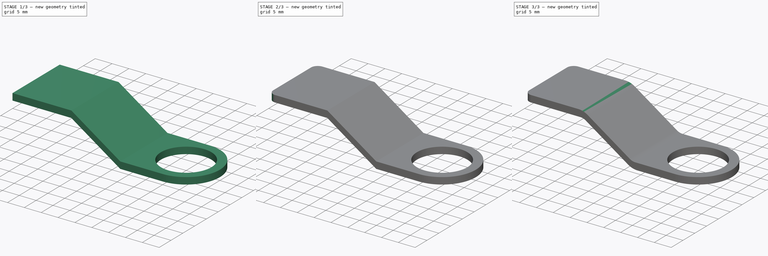
[diagram: build sequence overview — one tinted view per stage of 3, left to right]
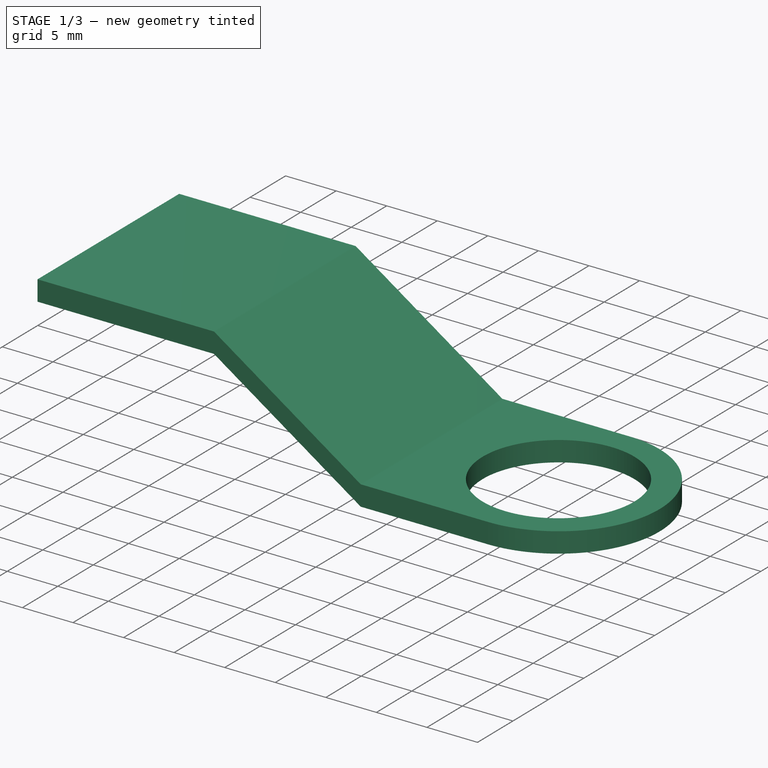
[diagram: stage 1 of 3 — iso view after this stage's code; geometry added in this stage tinted green]
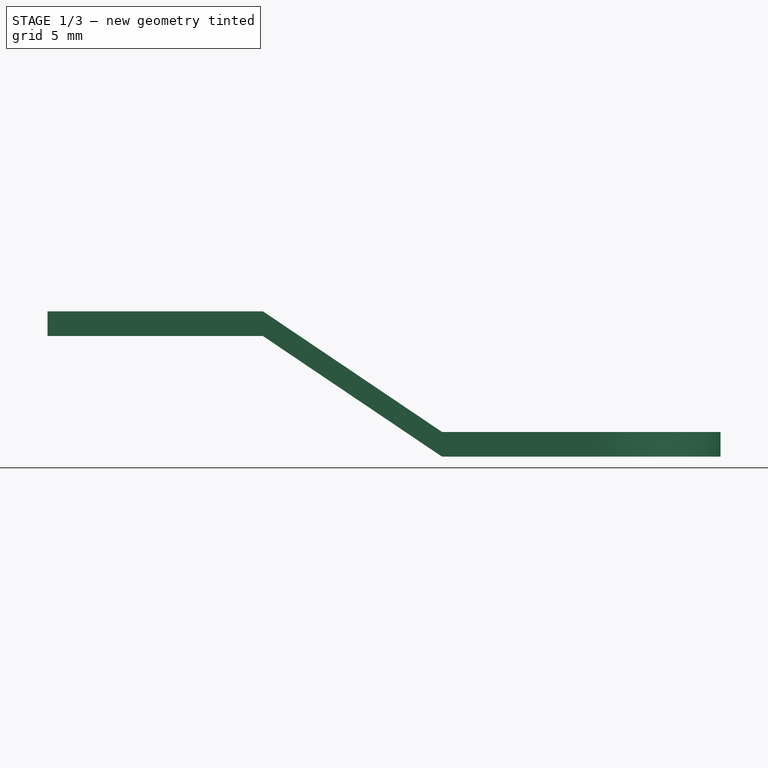
[diagram: stage 1 of 3 — front view after this stage's code; geometry added in this stage tinted green]
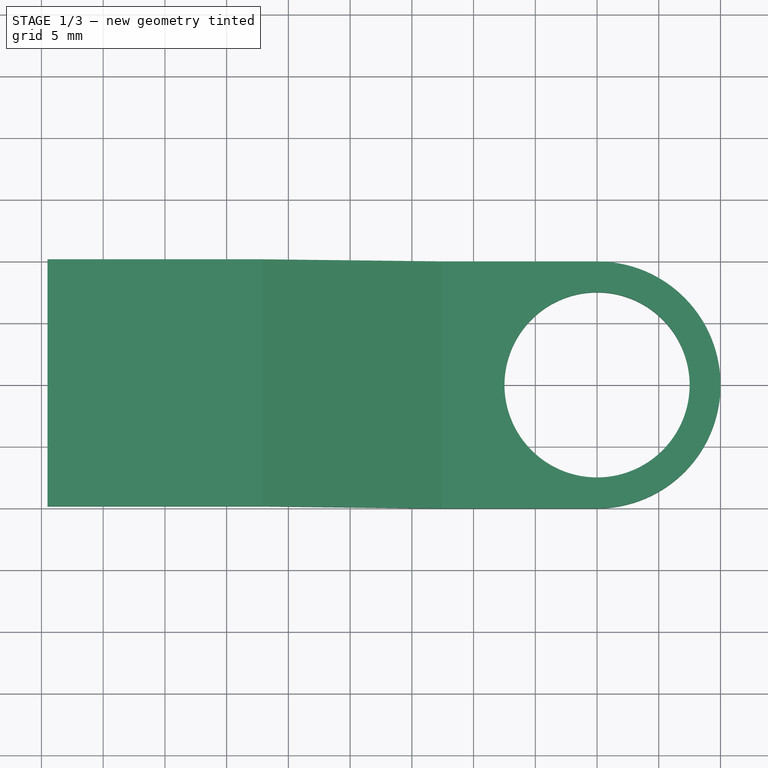
[diagram: stage 1 of 3 — top view after this stage's code; geometry added in this stage tinted green]
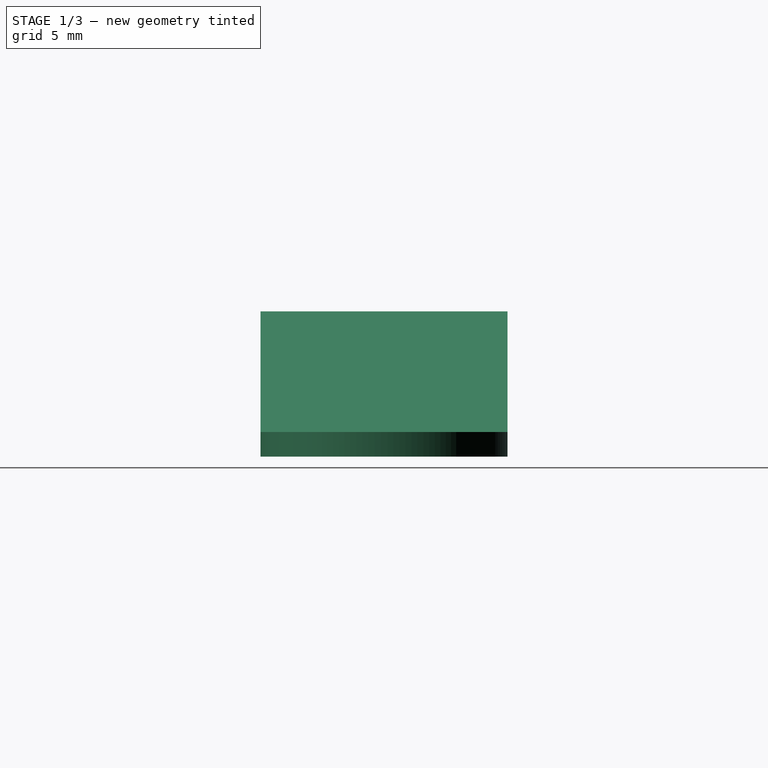
[diagram: stage 1 of 3 — right view after this stage's code; geometry added in this stage tinted green]
FCSTD DOCUMENT  (FreeCAD 0.14R3310 (Git))
Label: 34. PESTILLO CERRADURA
License: CC-BY 3.0
LicenseURL: http://creativecommons.org/licenses/by/3.0/
objects: PartDesign::Fillet×3, Sketcher::SketchObject×2, PartDesign::Pad×2
note: 9 computed .brp shape members not serialized (recipe doc carries the construction recipe); baked Part::Feature solids carry a one-line shape summary decoded from their .brp

FEATURE [Sketcher::SketchObject] Sketch
  sketch-geometry (5):
    g0: Circle CenterX=0 CenterY=0 CenterZ=0 NormalX=0 NormalY=0 NormalZ=1 Radius=7.5
    g1: ArcOfCircle CenterX=0 CenterY=0 CenterZ=0 NormalX=0 NormalY=0 NormalZ=1 Radius=10 StartAngle=4.71239 EndAngle=7.85398
    g2: LineSegment StartX=0 StartY=-10 StartZ=0 EndX=-12.554 EndY=-10 EndZ=0
    g3: LineSegment StartX=0 StartY=10 StartZ=0 EndX=-12.554 EndY=10 EndZ=0
    g4: LineSegment StartX=-12.554 StartY=-10 StartZ=0 EndX=-12.554 EndY=10 EndZ=0
  constraints (14):
    c: Coincident(g0,g-1)
    c: Radius(g0) = 7.5
    c: Coincident(g1,g-1)
    c: PointOnObject(g1,g-2)
    c: PointOnObject(g1,g-2)
    c: Radius(g1) = 10
    c: Coincident(g2,g1)
    c: Horizontal(g2)
    c: Coincident(g3,g1)
    c: Horizontal(g3)
    c: Coincident(g4,g2)
    c: Coincident(g4,g3)
    c: Vertical(g4)
    c: Distance(g2) = 12.554
FEATURE [PartDesign::Pad] Pad
  Length = 2
  Length2 = 100
  Sketch = -> Sketch
  Type = 0
FEATURE [Sketcher::SketchObject] Sketch001
  ExternalGeometry = -> [Pad]
  Placement = pos=(0,-10,0) rot=(1,0,0;1.5708rad)
  Support = -> Pad [Face4]
  sketch-geometry (6):
    g0: LineSegment StartX=-12.554 StartY=0 StartZ=0 EndX=-27.0625 EndY=9.77285 EndZ=0
    g1: LineSegment StartX=-12.554 StartY=2 StartZ=0 EndX=-27.0625 EndY=11.7728 EndZ=0
    g2: LineSegment StartX=-27.0625 StartY=9.77285 StartZ=0 EndX=-44.5085 EndY=9.77285 EndZ=0
    g3: LineSegment StartX=-44.5085 StartY=9.77285 StartZ=0 EndX=-44.5085 EndY=11.7728 EndZ=0
    g4: LineSegment StartX=-44.5085 StartY=11.7728 StartZ=0 EndX=-27.0625 EndY=11.7728 EndZ=0
    g5: LineSegment StartX=-12.554 StartY=0 StartZ=0 EndX=-12.554 EndY=2 EndZ=0
  constraints (16):
    c: Coincident(g0,g-3)
    c: Coincident(g1,g-3)
    c: Parallel(g1,g0)
    c: Distance(g0) = 17.493
    c: Coincident(g2,g0)
    c: Horizontal(g2)
    c: Distance(g2) = 17.446
    c: Angle(g-1,g0) = 2.54881
    c: Coincident(g3,g2)
    c: Vertical(g3)
    c: Distance(g3) = 2
    c: Coincident(g4,g3)
    c: Horizontal(g4)
    c: Coincident(g4,g1)
    c: Coincident(g5,g0)
    c: Coincident(g5,g1)
FEATURE [PartDesign::Pad] Pad001
  Length = 20
  Length2 = 100
  Reversed = true
  Sketch = -> Sketch001
  Type = 0
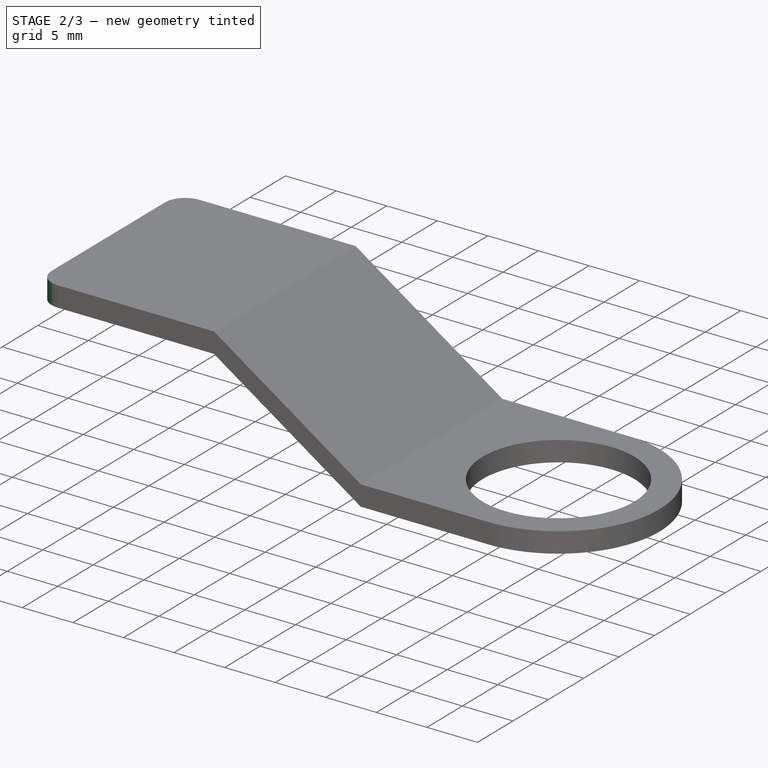
[diagram: stage 2 of 3 — iso view after this stage's code; geometry added in this stage tinted green]
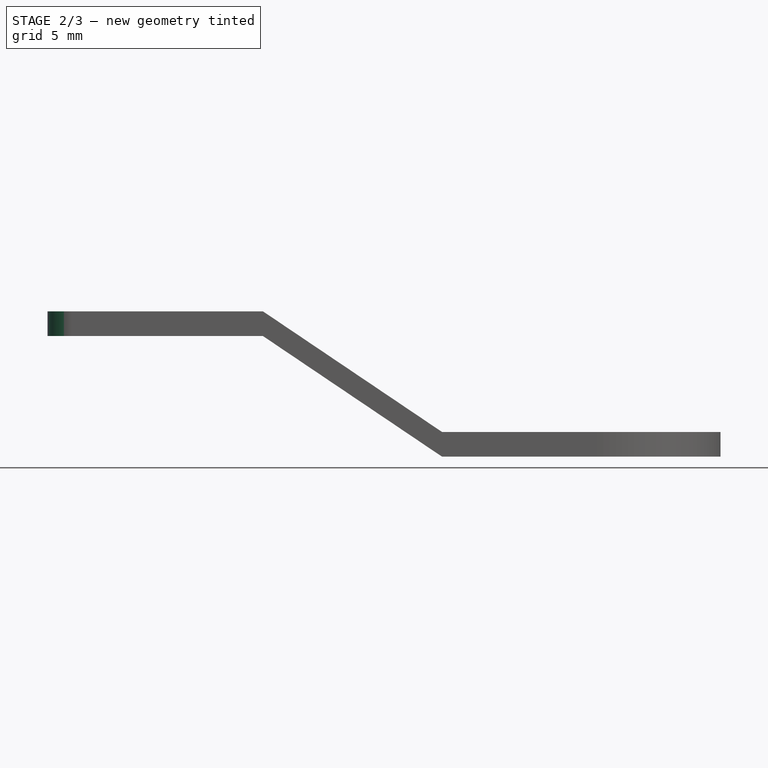
[diagram: stage 2 of 3 — front view after this stage's code; geometry added in this stage tinted green]
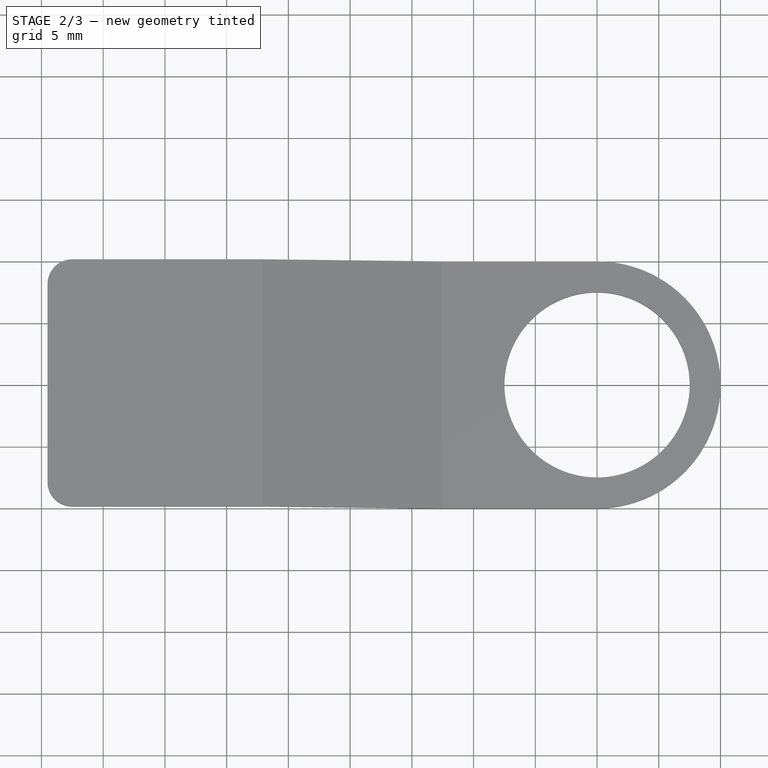
[diagram: stage 2 of 3 — top view after this stage's code; geometry added in this stage tinted green]
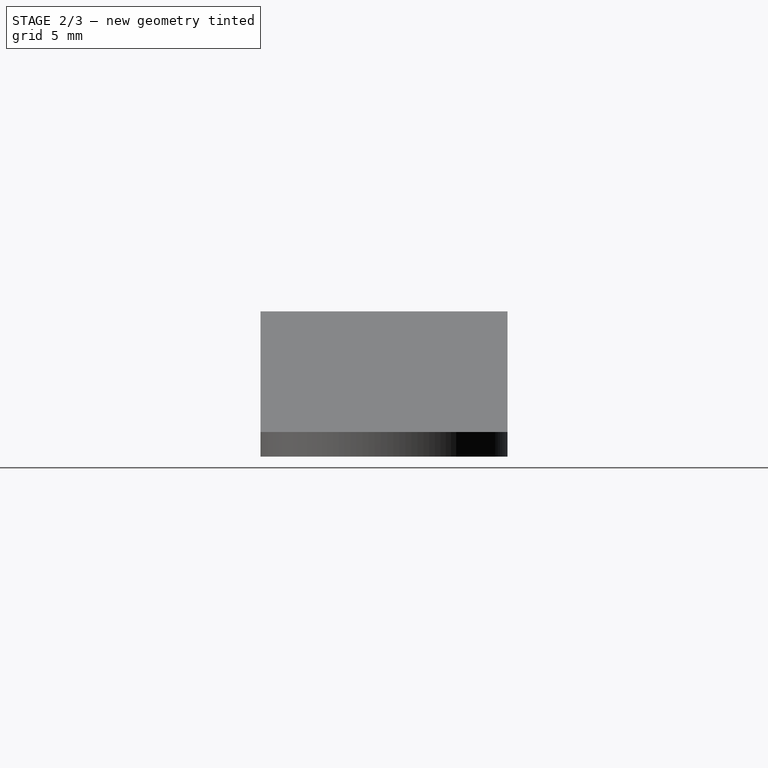
[diagram: stage 2 of 3 — right view after this stage's code; geometry added in this stage tinted green]
FEATURE [PartDesign::Fillet] Fillet
  Base = -> Pad001 [Edge24,Edge25]
  Radius = 2
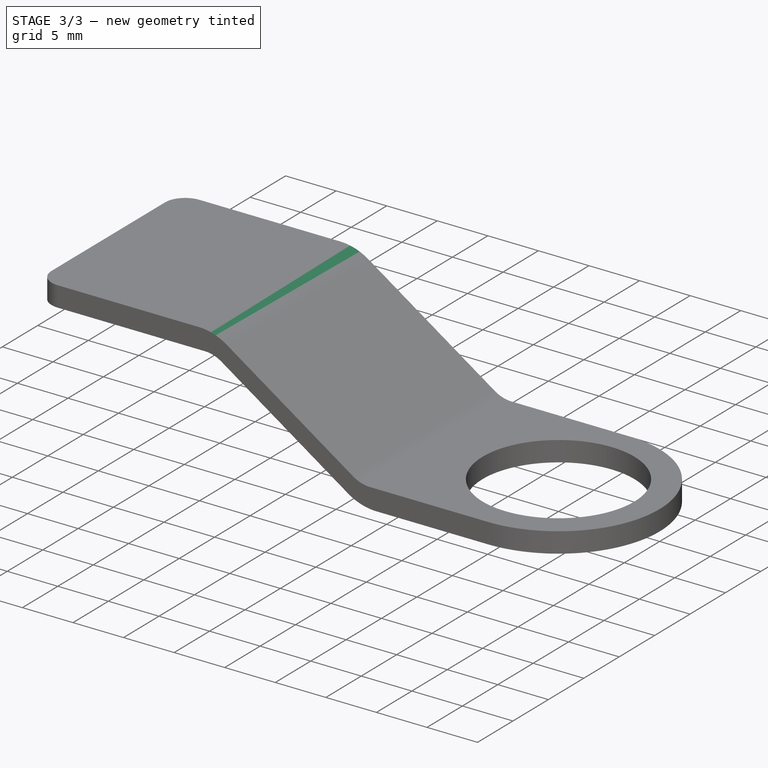
[diagram: stage 3 of 3 — iso view after this stage's code; geometry added in this stage tinted green]
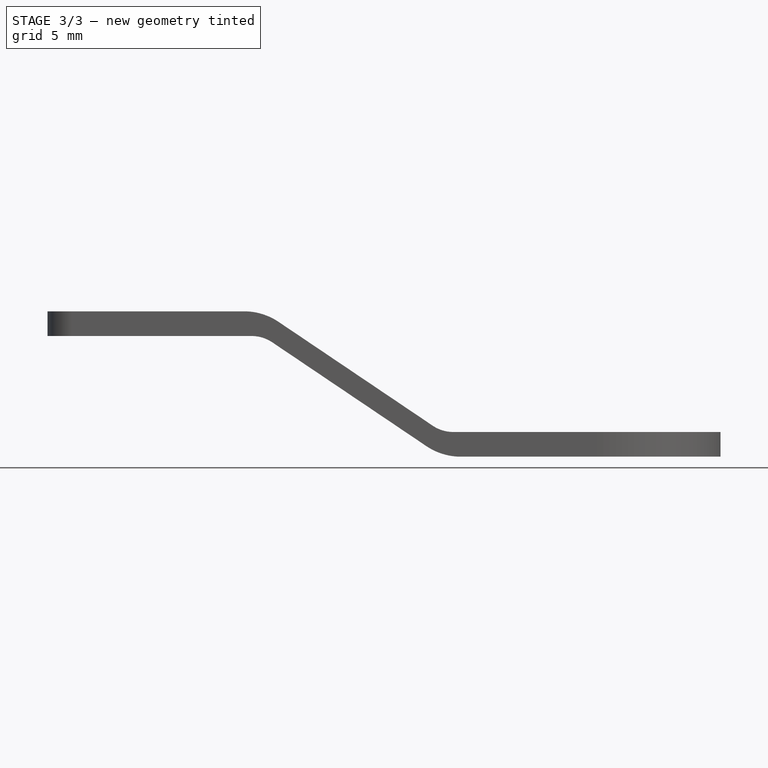
[diagram: stage 3 of 3 — front view after this stage's code; geometry added in this stage tinted green]
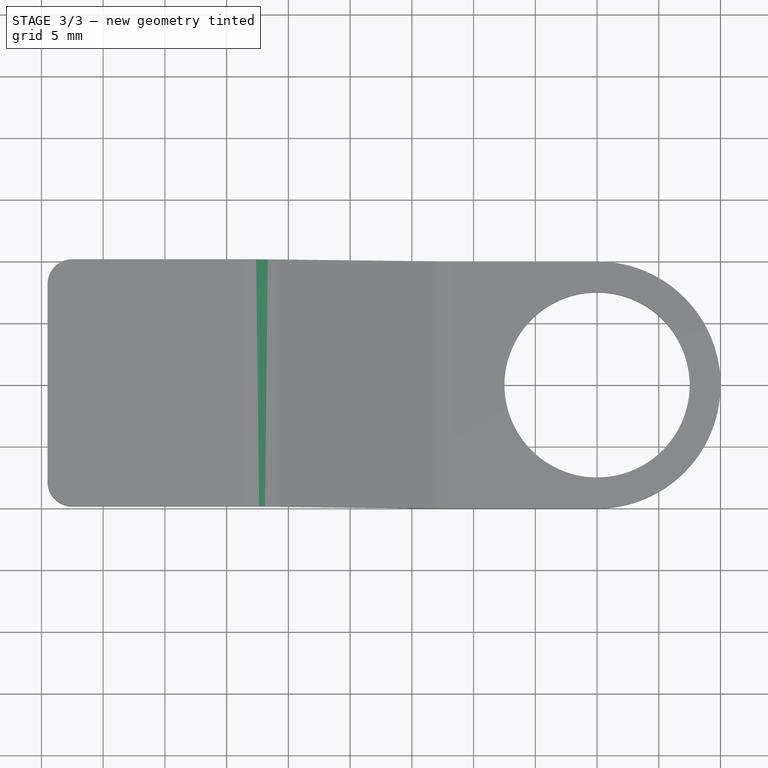
[diagram: stage 3 of 3 — top view after this stage's code; geometry added in this stage tinted green]
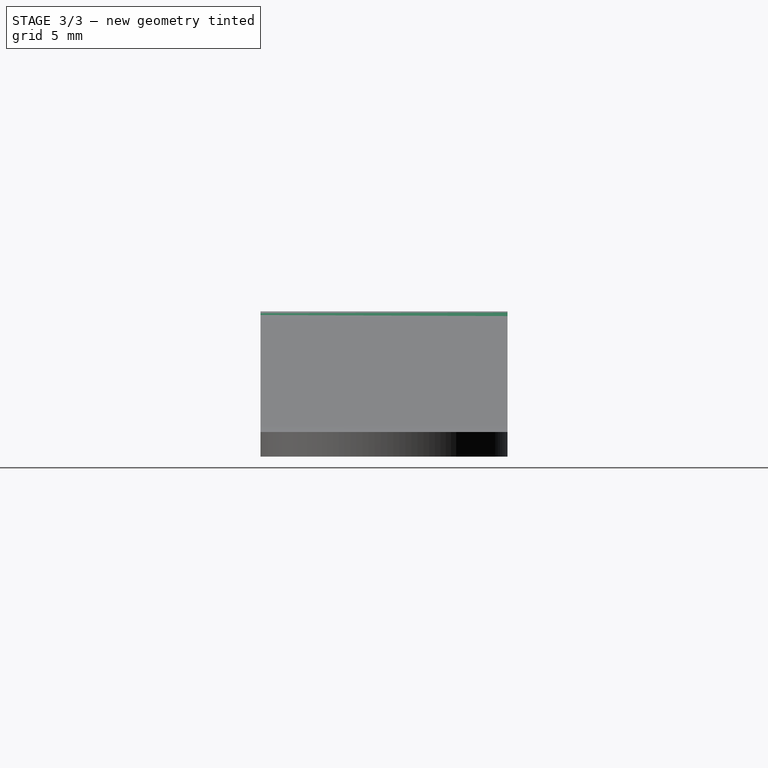
[diagram: stage 3 of 3 — right view after this stage's code; geometry added in this stage tinted green]
FEATURE [PartDesign::Fillet] Fillet001
  Base = -> Fillet [Edge27,Edge26]
  Radius = 5
FEATURE [PartDesign::Fillet] Fillet002
  Base = -> Fillet001 [Edge25,Edge20]
  Radius = 3
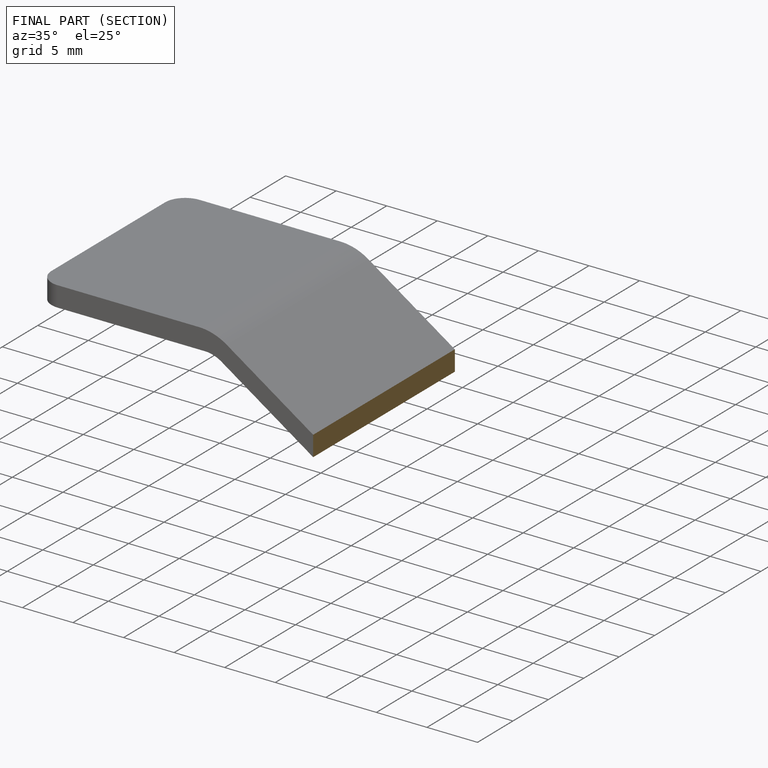
[diagram: finished part — half-section view (interior)]
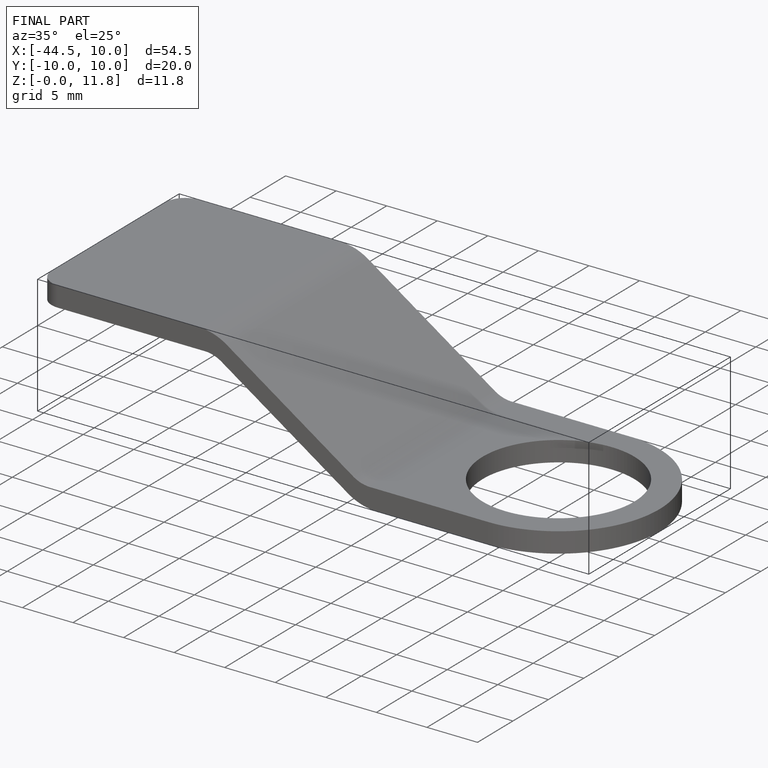
[diagram: finished part — iso view with bounding-box wireframe]
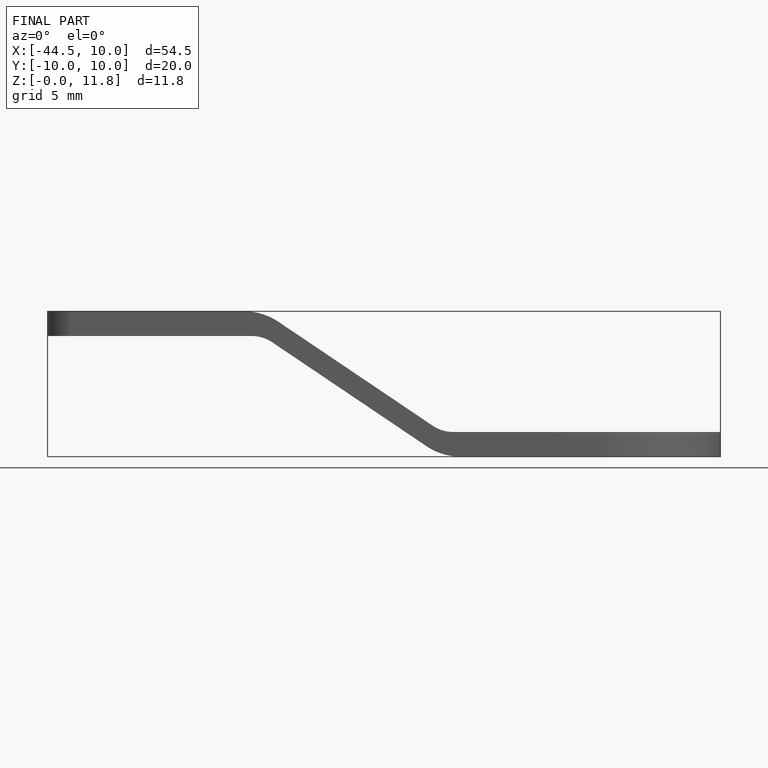
[diagram: finished part — front view with bounding-box wireframe]
